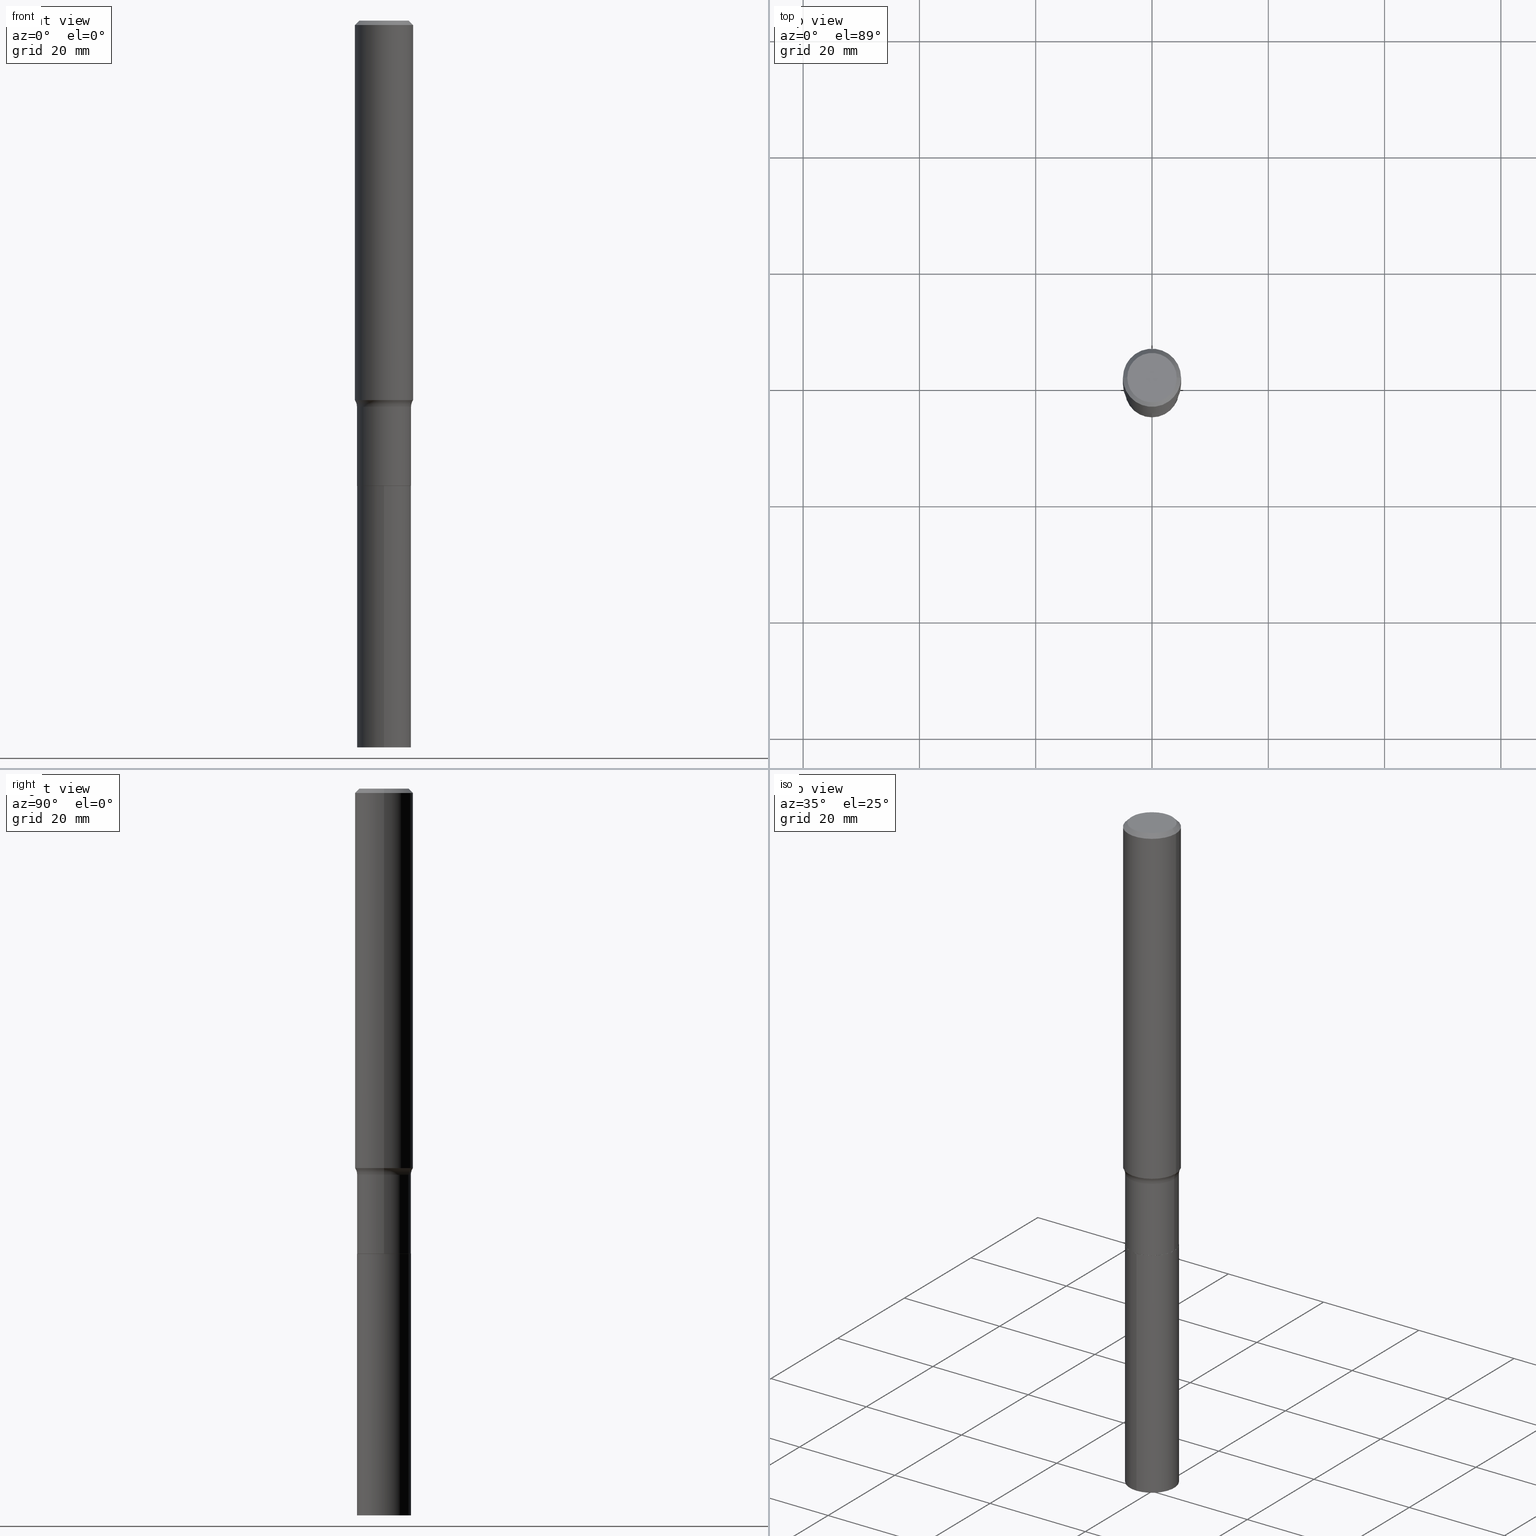
[diagram: canonical four-view strip — front | top / right | iso, engineering-drawing reading convention]
A machine part, canonical four-view strip (front | top / right | iso — engineering-drawing reading convention). The complete STEP part file that produces these views, byte-faithful:
ISO-10303-21;
HEADER;
FILE_DESCRIPTION (( 'STEP AP203' ),
    '1' );
FILE_NAME ('67881.STEP',
    '2024-04-19T16:52:04',
    ( '' ),
    ( '' ),
    'SwSTEP 2.0',
    'SolidWorks 2023',
    '' );
FILE_SCHEMA (( 'CONFIG_CONTROL_DESIGN' ));
ENDSEC;

DATA;
#1 = ADVANCED_FACE ( 'NONE', ( #260 ), #305, .T. ) ;
#2 = PLANE ( 'NONE',  #374 ) ;
#3 = DIRECTION ( 'NONE',  ( 0.7071067811860163310, -2.468850131076692830E-15, 0.7071067811870787034 ) ) ;
#4 = CYLINDRICAL_SURFACE ( 'NONE', #295, 0.1830499999999999905 ) ;
#5 = CARTESIAN_POINT ( 'NONE',  ( 1.203488073211193522E-28, -1.718263413532219501E-14, -4.921300000000000452 ) ) ;
#6 = VERTEX_POINT ( 'NONE', #49 ) ;
#7 = CARTESIAN_POINT ( 'NONE',  ( -8.479870072011572279E-29, -4.656092491393031169E-14, -4.921300000000000452 ) ) ;
#8 = ADVANCED_FACE ( 'NONE', ( #367 ), #4, .T. ) ;
#9 = CIRCLE ( 'NONE', #21, 0.1968500000000000250 ) ;
#10 = AXIS2_PLACEMENT_3D ( 'NONE', #110, #265, #227 ) ;
#11 = DIRECTION ( 'NONE',  ( -2.445468806185136877E-29, 3.491481338843145188E-15, 1.000000000000000000 ) ) ;
#12 = PRODUCT_DEFINITION_FORMATION_WITH_SPECIFIED_SOURCE ( 'ANY', '', #280, .NOT_KNOWN. ) ;
#13 = CARTESIAN_POINT ( 'NONE',  ( 7.700292176915756435E-29, -1.099397643974929475E-14, -3.148799999999999599 ) ) ;
#14 = DIRECTION ( 'NONE',  ( -2.445468806185136597E-29, 3.491481338843145583E-15, 1.000000000000000000 ) ) ;
#15 = ORIENTED_EDGE ( 'NONE', *, *, #197, .F. ) ;
#16 = CYLINDRICAL_SURFACE ( 'NONE', #139, 0.1968500000000001915 ) ;
#17 = ORIENTED_EDGE ( 'NONE', *, *, #61, .F. ) ;
#18 = EDGE_CURVE ( 'NONE', #126, #461, #317, .T. ) ;
#19 = CIRCLE ( 'NONE', #55, 0.1968500000000003580 ) ;
#20 = CC_DESIGN_APPROVAL ( #343, ( #348 ) ) ;
#21 = AXIS2_PLACEMENT_3D ( 'NONE', #448, #376, #103 ) ;
#22 = VECTOR ( 'NONE', #406, 39.37007874015748143 ) ;
#23 = PERSON_AND_ORGANIZATION_ROLE ( 'classification_officer' ) ;
#24 = DIRECTION ( 'NONE',  ( -6.982962677686264344E-15, -1.000000000000000000, 2.984810700534567995E-15 ) ) ;
#25 = APPROVAL_ROLE ( '' ) ;
#26 = CONICAL_SURFACE ( 'NONE', #121, 0.1825499999999999623, 0.7853981633966971021 ) ;
#27 = ORIENTED_EDGE ( 'NONE', *, *, #289, .F. ) ;
#28 = CARTESIAN_POINT ( 'NONE',  ( 0.000000000000000000, 0.000000000000000000, 0.000000000000000000 ) ) ;
#29 = DATE_AND_TIME ( #459, #151 ) ;
#30 = EDGE_CURVE ( 'NONE', #137, #199, #444, .T. ) ;
#31 = LENGTH_MEASURE_WITH_UNIT ( LENGTH_MEASURE( 0.02539999999999999897 ), #333 );
#32 = EDGE_LOOP ( 'NONE', ( #458, #77, #323, #221 ) ) ;
#33 = DIRECTION ( 'NONE',  ( -2.445468806185136597E-29, 3.491481338843145583E-15, 1.000000000000000000 ) ) ;
#34 = CARTESIAN_POINT ( 'NONE',  ( 0.1825499999999999623, -1.227046201723034707E-14, -3.149300000000000210 ) ) ;
#35 = EDGE_CURVE ( 'NONE', #461, #199, #179, .T. ) ;
#36 = DIRECTION ( 'NONE',  ( 1.000000000000000000, -6.982962677686263555E-15, 0.000000000000000000 ) ) ;
#37 = ORIENTED_EDGE ( 'NONE', *, *, #316, .T. ) ;
#38 = PLANE ( 'NONE',  #229 ) ;
#39 = FACE_OUTER_BOUND ( 'NONE', #326, .T. ) ;
#40 = DIRECTION ( 'NONE',  ( -0.7071067811865456854, 2.468850131082237733E-15, -0.7071067811865493491 ) ) ;
#41 = VERTEX_POINT ( 'NONE', #143 ) ;
#42 = FACE_OUTER_BOUND ( 'NONE', #344, .T. ) ;
#43 = CARTESIAN_POINT ( 'NONE',  ( 0.1673224999999999851, -1.300749711163072397E-15, 4.096137381456741925E-18 ) ) ;
#44 = AXIS2_PLACEMENT_3D ( 'NONE', #427, #170, #243 ) ;
#45 = DIRECTION ( 'NONE',  ( -2.445468806185136597E-29, 3.491481338843145583E-15, 1.000000000000000000 ) ) ;
#46 = CARTESIAN_POINT ( 'NONE',  ( 0.2630499999999998950, -1.096499714463688911E-14, -2.614399999999999391 ) ) ;
#47 = CARTESIAN_POINT ( 'NONE',  ( 1.300648477808961733E-15, 0.1830499999999828098, -4.921300000000002228 ) ) ;
#48 = ORIENTED_EDGE ( 'NONE', *, *, #313, .T. ) ;
#49 = CARTESIAN_POINT ( 'NONE',  ( -1.278231318150350366E-15, -0.1830500000000171434, -4.921299999999999564 ) ) ;
#50 = DIRECTION ( 'NONE',  ( 1.000000000000000000, -6.982962677686262766E-15, 0.000000000000000000 ) ) ;
#51 = AXIS2_PLACEMENT_3D ( 'NONE', #83, #457, #464 ) ;
#52 = DATE_AND_TIME ( #419, #252 ) ;
#53 = AXIS2_PLACEMENT_3D ( 'NONE', #138, #131, #400 ) ;
#54 = DIRECTION ( 'NONE',  ( 1.000000000000000000, -6.982962677686263555E-15, 0.000000000000000000 ) ) ;
#55 = AXIS2_PLACEMENT_3D ( 'NONE', #281, #163, #388 ) ;
#56 = AXIS2_PLACEMENT_3D ( 'NONE', #118, #226, #50 ) ;
#57 = DATE_TIME_ROLE ( 'creation_date' ) ;
#58 = DIRECTION ( 'NONE',  ( 0.000000000000000000, 0.000000000000000000, 1.000000000000000000 ) ) ;
#59 =( NAMED_UNIT ( * ) SI_UNIT ( $, .STERADIAN. ) SOLID_ANGLE_UNIT ( ) );
#60 = DIRECTION ( 'NONE',  ( -2.445466038822281372E-29, 3.491485301864262439E-15, 1.000000000000000000 ) ) ;
#61 = EDGE_CURVE ( 'NONE', #126, #130, #299, .T. ) ;
#62 = DIRECTION ( 'NONE',  ( -2.445468806185136597E-29, 3.491481338843145583E-15, 1.000000000000000000 ) ) ;
#63 = CC_DESIGN_APPROVAL ( #364, ( #215 ) ) ;
#64 = DIRECTION ( 'NONE',  ( 1.000000000000000000, -6.982962677686266711E-15, 4.876176775795935793E-29 ) ) ;
#65 = ORIENTED_EDGE ( 'NONE', *, *, #387, .F. ) ;
#66 = DIRECTION ( 'NONE',  ( -1.000000000000000000, 7.105427357601005014E-15, 0.000000000000000000 ) ) ;
#67 = CARTESIAN_POINT ( 'NONE',  ( 0.000000000000000000, 0.000000000000000000, 0.000000000000000000 ) ) ;
#68 = DIRECTION ( 'NONE',  ( 2.445466038822281372E-29, -3.491485301864262439E-15, -1.000000000000000000 ) ) ;
#69 = CARTESIAN_POINT ( 'NONE',  ( 0.000000000000000000, 0.000000000000000000, 0.000000000000000000 ) ) ;
#70 = ORIENTED_EDGE ( 'NONE', *, *, #169, .F. ) ;
#71 = ADVANCED_FACE ( 'NONE', ( #417 ), #158, .T. ) ;
#72 = DIRECTION ( 'NONE',  ( -2.445468806185136597E-29, 3.491481338843145583E-15, 1.000000000000000000 ) ) ;
#73 = CIRCLE ( 'NONE', #339, 0.1830499999999999905 ) ;
#74 = APPROVAL_PERSON_ORGANIZATION ( #238, #385, #25 ) ;
#75 = ORIENTED_EDGE ( 'NONE', *, *, #383, .F. ) ;
#76 = CARTESIAN_POINT ( 'NONE',  ( -0.1968500000000000250, -3.138494505646045746E-15, -0.02952750000000017166 ) ) ;
#77 = ORIENTED_EDGE ( 'NONE', *, *, #149, .T. ) ;
#78 = EDGE_CURVE ( 'NONE', #246, #263, #168, .T. ) ;
#79 = PERSON_AND_ORGANIZATION_ROLE ( 'design_supplier' ) ;
#80 = CIRCLE ( 'NONE', #180, 0.1673224999999999851 ) ;
#81 = EDGE_CURVE ( 'NONE', #128, #137, #80, .T. ) ;
#82 = CIRCLE ( 'NONE', #286, 0.08000000000000007105 ) ;
#83 = CARTESIAN_POINT ( 'NONE',  ( 7.701514911318850358E-29, -1.099572218041871704E-14, -3.149299999999999766 ) ) ;
#84 = ADVANCED_FACE ( 'NONE', ( #186 ), #342, .T. ) ;
#85 = COORDINATED_UNIVERSAL_TIME_OFFSET ( 5, 0, .BEHIND. ) ;
#86 = VECTOR ( 'NONE', #301, 39.37007874015748143 ) ;
#87 = ORIENTED_EDGE ( 'NONE', *, *, #197, .T. ) ;
#88 = VERTEX_POINT ( 'NONE', #291 ) ;
#89 = DIRECTION ( 'NONE',  ( 1.000000000000000000, -6.982962677686264344E-15, 0.000000000000000000 ) ) ;
#90 = PERSON_AND_ORGANIZATION_ROLE ( 'design_owner' ) ;
#91 = TOROIDAL_SURFACE ( 'NONE', #421, 0.2630499999999998950, 0.08000000000000007105 ) ;
#92 = DIRECTION ( 'NONE',  ( 1.000000000000000000, -6.982962677686267499E-15, 4.876294436782262290E-29 ) ) ;
#93 = DIRECTION ( 'NONE',  ( 1.000000000000000000, -6.982962677686266711E-15, 4.876176775795935232E-29 ) ) ;
#94 = CARTESIAN_POINT ( 'NONE',  ( -0.2630499999999998950, -7.259046145854573999E-15, -2.614399999999999391 ) ) ;
#95 = CARTESIAN_POINT ( 'NONE',  ( 0.000000000000000000, 0.000000000000000000, 0.000000000000000000 ) ) ;
#96 = DIRECTION ( 'NONE',  ( 1.000000000000000000, -6.982962677686266711E-15, 4.876176775795935793E-29 ) ) ;
#97 = CYLINDRICAL_SURFACE ( 'NONE', #100, 0.1830499999999999072 ) ;
#98 = VECTOR ( 'NONE', #3, 39.37007874015748143 ) ;
#99 = DIRECTION ( 'NONE',  ( -6.982962677686265922E-15, -1.000000000000000000, 3.491485301864262439E-15 ) ) ;
#100 = AXIS2_PLACEMENT_3D ( 'NONE', #28, #205, #93 ) ;
#101 = CARTESIAN_POINT ( 'NONE',  ( -0.1968500000000000250, 1.271501487869850120E-15, -0.02952750000000017166 ) ) ;
#102 = CARTESIAN_POINT ( 'NONE',  ( 7.220858017463204230E-31, -1.030947152326915870E-16, -0.02952750000000017166 ) ) ;
#103 = DIRECTION ( 'NONE',  ( 1.000000000000000000, -6.982962677686265922E-15, 0.000000000000000000 ) ) ;
#104 = ORIENTED_EDGE ( 'NONE', *, *, #30, .F. ) ;
#105 = LINE ( 'NONE', #219, #296 ) ;
#106 = PLANE ( 'NONE',  #262 ) ;
#107 = ORIENTED_EDGE ( 'NONE', *, *, #267, .T. ) ;
#108 = APPROVAL_PERSON_ORGANIZATION ( #191, #343, #414 ) ;
#109 = ORIENTED_EDGE ( 'NONE', *, *, #455, .F. ) ;
#110 = CARTESIAN_POINT ( 'NONE',  ( 7.220858017463204230E-31, -1.030947152326915870E-16, -0.02952750000000017166 ) ) ;
#111 = APPLICATION_CONTEXT ( 'configuration controlled 3d designs of mechanical parts and assemblies' ) ;
#112 = EDGE_CURVE ( 'NONE', #199, #130, #9, .T. ) ;
#113 = CARTESIAN_POINT ( 'NONE',  ( 6.393433646890419314E-29, -9.128128812271516003E-15, -2.614399999999999391 ) ) ;
#114 = CARTESIAN_POINT ( 'NONE',  ( 7.701514911318851479E-29, -1.099572218041872020E-14, -3.149300000000000210 ) ) ;
#115 = AXIS2_PLACEMENT_3D ( 'NONE', #102, #256, #404 ) ;
#116 = CC_DESIGN_APPROVAL ( #385, ( #12 ) ) ;
#117 = PERSON_AND_ORGANIZATION ( #152, #356 ) ;
#118 = CARTESIAN_POINT ( 'NONE',  ( 7.700292176915756435E-29, -1.099397643974929475E-14, -3.148799999999999599 ) ) ;
#119 = CALENDAR_DATE ( 2024, 19, 4 ) ;
#120 = AXIS2_PLACEMENT_3D ( 'NONE', #67, #45, #96 ) ;
#121 = AXIS2_PLACEMENT_3D ( 'NONE', #178, #72, #290 ) ;
#122 = VERTEX_POINT ( 'NONE', #47 ) ;
#123 = CARTESIAN_POINT ( 'NONE',  ( 7.701514911318851479E-29, -1.099572218041872020E-14, -3.149300000000000210 ) ) ;
#124 = DIRECTION ( 'NONE',  ( 1.000000000000000000, 0.000000000000000000, 0.000000000000000000 ) ) ;
#125 = CC_DESIGN_PERSON_AND_ORGANIZATION_ASSIGNMENT ( #285, #425, ( #215 ) ) ;
#126 = VERTEX_POINT ( 'NONE', #438 ) ;
#127 =( NAMED_UNIT ( * ) PLANE_ANGLE_UNIT ( ) SI_UNIT ( $, .RADIAN. ) );
#128 = VERTEX_POINT ( 'NONE', #43 ) ;
#129 = CIRCLE ( 'NONE', #44, 0.1830499999999999905 ) ;
#130 = VERTEX_POINT ( 'NONE', #304 ) ;
#131 = DIRECTION ( 'NONE',  ( 2.438088387897960049E-29, -3.491481338843145188E-15, -1.000000000000000000 ) ) ;
#132 = DIRECTION ( 'NONE',  ( -2.445468806185136597E-29, 3.491481338843145583E-15, 1.000000000000000000 ) ) ;
#133 = ADVANCED_FACE ( 'NONE', ( #142 ), #16, .T. ) ;
#134 = DIRECTION ( 'NONE',  ( 7.105427357601001859E-15, 1.000000000000000000, -3.491481338843145583E-15 ) ) ;
#135 = DIRECTION ( 'NONE',  ( 1.000000000000000000, -6.982962677686267499E-15, 4.876294436782262290E-29 ) ) ;
#136 = DIRECTION ( 'NONE',  ( -2.445466038822281652E-29, 3.491485301864262044E-15, 1.000000000000000000 ) ) ;
#137 = VERTEX_POINT ( 'NONE', #145 ) ;
#138 = CARTESIAN_POINT ( 'NONE',  ( -5.008488096090108951E-47, 7.150793614331948590E-33, 2.048068690724054183E-18 ) ) ;
#139 = AXIS2_PLACEMENT_3D ( 'NONE', #95, #396, #64 ) ;
#140 = ADVANCED_FACE ( 'NONE', ( #209 ), #307, .T. ) ;
#141 = LOCAL_TIME ( 12, 52, 4.000000000000000000, #157 ) ;
#142 = FACE_OUTER_BOUND ( 'NONE', #276, .T. ) ;
#143 = CARTESIAN_POINT ( 'NONE',  ( -0.1830499999999999350, -8.760404148201544025E-15, -3.148799999999999599 ) ) ;
#144 = DIRECTION ( 'NONE',  ( -2.445468806185136597E-29, 3.491481338843145583E-15, 1.000000000000000000 ) ) ;
#145 = CARTESIAN_POINT ( 'NONE',  ( -0.1673224999999999851, 1.219954130253505263E-15, 4.096137381439757534E-18 ) ) ;
#146 = CC_DESIGN_DATE_AND_TIME_ASSIGNMENT ( #351, #416, ( #348 ) ) ;
#147 = VERTEX_POINT ( 'NONE', #334 ) ;
#148 = EDGE_LOOP ( 'NONE', ( #48, #447, #109, #377 ) ) ;
#149 = EDGE_CURVE ( 'NONE', #325, #41, #401, .T. ) ;
#150 = CIRCLE ( 'NONE', #207, 0.1830499999999999905 ) ;
#151 = LOCAL_TIME ( 12, 52, 4.000000000000000000, #359 ) ;
#152 = PERSON ( 'UNSPECIFIED', 'UNSPECIFIED', 'UNSPECIFIED', ('UNSPECIFIED'), ('UNSPECIFIED'), ('UNSPECIFIED') ) ;
#153 = DIRECTION ( 'NONE',  ( 1.000000000000000000, -6.982962677686264344E-15, 0.000000000000000000 ) ) ;
#154 = ADVANCED_FACE ( 'NONE', ( #39 ), #106, .F. ) ;
#155 = LOCAL_TIME ( 12, 52, 4.000000000000000000, #85 ) ;
#156 = CARTESIAN_POINT ( 'NONE',  ( 6.393433646890419314E-29, -9.128128812271516003E-15, -2.614399999999999391 ) ) ;
#157 = COORDINATED_UNIVERSAL_TIME_OFFSET ( 5, 0, .BEHIND. ) ;
#158 = CYLINDRICAL_SURFACE ( 'NONE', #51, 0.1830499999999999905 ) ;
#159 = APPROVAL_ROLE ( '' ) ;
#160 = ORIENTED_EDGE ( 'NONE', *, *, #35, .F. ) ;
#161 = DATE_AND_TIME ( #237, #155 ) ;
#162 = EDGE_CURVE ( 'NONE', #325, #246, #236, .T. ) ;
#163 = DIRECTION ( 'NONE',  ( -2.445468806185136597E-29, 3.491481338843145583E-15, 1.000000000000000000 ) ) ;
#164 = AXIS2_PLACEMENT_3D ( 'NONE', #113, #282, #36 ) ;
#165 = ORIENTED_EDGE ( 'NONE', *, *, #324, .F. ) ;
#166 = CARTESIAN_POINT ( 'NONE',  ( -0.1968500000000003858, -7.572597671403159960E-15, -2.569482742737338121 ) ) ;
#167 = ORIENTED_EDGE ( 'NONE', *, *, #324, .T. ) ;
#168 = LINE ( 'NONE', #372, #98 ) ;
#169 = EDGE_CURVE ( 'NONE', #122, #6, #443, .T. ) ;
#170 = DIRECTION ( 'NONE',  ( -2.445466038822281652E-29, 3.491485301864262044E-15, 1.000000000000000000 ) ) ;
#171 = AXIS2_PLACEMENT_3D ( 'NONE', #375, #340, #258 ) ;
#172 = CARTESIAN_POINT ( 'NONE',  ( 1.300648477808983624E-15, 0.1830499999999889715, -3.149300000000000210 ) ) ;
#173 = CARTESIAN_POINT ( 'NONE',  ( 7.701514911318850358E-29, -1.099572218041871704E-14, -3.149299999999999766 ) ) ;
#174 = FACE_OUTER_BOUND ( 'NONE', #332, .T. ) ;
#175 = DIRECTION ( 'NONE',  ( -2.445468806185136597E-29, 3.491481338843145583E-15, 1.000000000000000000 ) ) ;
#176 = DIRECTION ( 'NONE',  ( -2.445468806185136597E-29, 3.491481338843145583E-15, 1.000000000000000000 ) ) ;
#177 = EDGE_LOOP ( 'NONE', ( #27, #257, #354, #431 ) ) ;
#178 = CARTESIAN_POINT ( 'NONE',  ( 7.701514911318851479E-29, -1.099572218041872020E-14, -3.149300000000000210 ) ) ;
#179 = LINE ( 'NONE', #337, #250 ) ;
#180 = AXIS2_PLACEMENT_3D ( 'NONE', #331, #175, #135 ) ;
#181 = AXIS2_PLACEMENT_3D ( 'NONE', #114, #193, #153 ) ;
#182 = CARTESIAN_POINT ( 'NONE',  ( 0.1830499999999999072, -1.278231318150470470E-15, 8.925841588094455250E-30 ) ) ;
#183 = ORIENTED_EDGE ( 'NONE', *, *, #61, .T. ) ;
#184 = ORIENTED_EDGE ( 'NONE', *, *, #149, .F. ) ;
#185 = FACE_OUTER_BOUND ( 'NONE', #357, .T. ) ;
#186 = FACE_OUTER_BOUND ( 'NONE', #148, .T. ) ;
#187 = ORIENTED_EDGE ( 'NONE', *, *, #320, .F. ) ;
#188 = ADVANCED_FACE ( 'NONE', ( #410 ), #91, .F. ) ;
#189 = VECTOR ( 'NONE', #40, 39.37007874015748143 ) ;
#190 = CIRCLE ( 'NONE', #164, 0.1830499999999999072 ) ;
#191 = PERSON_AND_ORGANIZATION ( #152, #356 ) ;
#192 = DIRECTION ( 'NONE',  ( -2.438088387897960049E-29, 3.491481338843145188E-15, 1.000000000000000000 ) ) ;
#193 = DIRECTION ( 'NONE',  ( -2.445468806185136597E-29, 3.491481338843145583E-15, 1.000000000000000000 ) ) ;
#194 = AXIS2_PLACEMENT_3D ( 'NONE', #329, #132, #92 ) ;
#195 = PRODUCT_DEFINITION_SHAPE ( 'NONE', 'NONE',  #215 ) ;
#196 = DATE_AND_TIME ( #314, #271 ) ;
#197 = EDGE_CURVE ( 'NONE', #122, #255, #312, .T. ) ;
#198 = APPROVAL_STATUS ( 'not_yet_approved' ) ;
#199 = VERTEX_POINT ( 'NONE', #76 ) ;
#200 = DIRECTION ( 'NONE',  ( -6.982962677686264344E-15, -1.000000000000000000, 5.969621401069135991E-15 ) ) ;
#201 = PERSON_AND_ORGANIZATION ( #152, #356 ) ;
#202 = CONICAL_SURFACE ( 'NONE', #10, 0.1968500000000000250, 0.7853981633974457255 ) ;
#203 =( GEOMETRIC_REPRESENTATION_CONTEXT ( 3 ) GLOBAL_UNCERTAINTY_ASSIGNED_CONTEXT ( ( #361 ) ) GLOBAL_UNIT_ASSIGNED_CONTEXT ( ( #463, #127, #59 ) ) REPRESENTATION_CONTEXT ( 'NONE', 'WORKASPACE' ) );
#204 = APPLICATION_PROTOCOL_DEFINITION ( 'international standard', 'config_control_design', 1994, #111 ) ;
#205 = DIRECTION ( 'NONE',  ( -2.445468806185136597E-29, 3.491481338843145583E-15, 1.000000000000000000 ) ) ;
#206 = PRODUCT_RELATED_PRODUCT_CATEGORY ( 'detail', '', ( #280 ) ) ;
#207 = AXIS2_PLACEMENT_3D ( 'NONE', #173, #435, #24 ) ;
#208 = EDGE_LOOP ( 'NONE', ( #379, #391 ) ) ;
#209 = FACE_OUTER_BOUND ( 'NONE', #445, .T. ) ;
#210 = EDGE_LOOP ( 'NONE', ( #15, #420, #37, #362 ) ) ;
#211 = ADVANCED_FACE ( 'NONE', ( #378 ), #202, .T. ) ;
#212 = ORIENTED_EDGE ( 'NONE', *, *, #267, .F. ) ;
#213 = FACE_OUTER_BOUND ( 'NONE', #208, .T. ) ;
#214 = ORIENTED_EDGE ( 'NONE', *, *, #387, .T. ) ;
#215 = PRODUCT_DEFINITION ( 'UNKNOWN', '', #12, #345 ) ;
#216 = LINE ( 'NONE', #182, #22 ) ;
#217 = ORIENTED_EDGE ( 'NONE', *, *, #316, .F. ) ;
#218 = VECTOR ( 'NONE', #248, 39.37007874015748143 ) ;
#219 = CARTESIAN_POINT ( 'NONE',  ( -1.278231318150393753E-15, -0.1830500000000109817, -3.149299999999999322 ) ) ;
#220 = DIRECTION ( 'NONE',  ( 1.000000000000000000, -6.982962677686266711E-15, 4.876176775795935232E-29 ) ) ;
#221 = ORIENTED_EDGE ( 'NONE', *, *, #78, .F. ) ;
#222 = MANIFOLD_SOLID_BREP ( 'Body-Move/Copy2[1]', #261 ) ;
#223 = EDGE_CURVE ( 'NONE', #147, #88, #190, .T. ) ;
#224 = DIRECTION ( 'NONE',  ( 1.000000000000000000, -6.982962677686266711E-15, 4.883557194083112901E-29 ) ) ;
#225 = VERTEX_POINT ( 'NONE', #363 ) ;
#226 = DIRECTION ( 'NONE',  ( -2.445468806185136597E-29, 3.491481338843145583E-15, 1.000000000000000000 ) ) ;
#227 = DIRECTION ( 'NONE',  ( -1.000000000000000000, 6.982962677686265922E-15, 0.000000000000000000 ) ) ;
#228 = CC_DESIGN_PERSON_AND_ORGANIZATION_ASSIGNMENT ( #201, #90, ( #280 ) ) ;
#229 = AXIS2_PLACEMENT_3D ( 'NONE', #7, #60, #99 ) ;
#230 = PERSON_AND_ORGANIZATION ( #152, #356 ) ;
#231 = ADVANCED_FACE ( 'NONE', ( #185 ), #253, .F. ) ;
#232 = DIRECTION ( 'NONE',  ( -2.445468806185136597E-29, 3.491481338843145583E-15, 1.000000000000000000 ) ) ;
#233 = APPROVAL_DATE_TIME ( #196, #385 ) ;
#234 = CC_DESIGN_PERSON_AND_ORGANIZATION_ASSIGNMENT ( #117, #23, ( #348 ) ) ;
#235 = MECHANICAL_CONTEXT ( 'NONE', #111, 'mechanical' ) ;
#236 = CIRCLE ( 'NONE', #181, 0.1825499999999999623 ) ;
#237 = CALENDAR_DATE ( 2024, 19, 4 ) ;
#238 = PERSON_AND_ORGANIZATION ( #152, #356 ) ;
#239 = ORIENTED_EDGE ( 'NONE', *, *, #264, .F. ) ;
#240 = ORIENTED_EDGE ( 'NONE', *, *, #162, .T. ) ;
#241 = CARTESIAN_POINT ( 'NONE',  ( 6.393433646890419314E-29, -9.128128812271516003E-15, -2.614399999999999391 ) ) ;
#242 = AXIS2_PLACEMENT_3D ( 'NONE', #412, #350, #269 ) ;
#243 = DIRECTION ( 'NONE',  ( -6.982962677686264344E-15, -1.000000000000000000, 2.984810700534567995E-15 ) ) ;
#244 = ADVANCED_FACE ( 'NONE', ( #174 ), #38, .F. ) ;
#245 = ORIENTED_EDGE ( 'NONE', *, *, #78, .T. ) ;
#246 = VERTEX_POINT ( 'NONE', #34 ) ;
#247 = APPLICATION_CONTEXT ( 'configuration controlled 3d designs of mechanical parts and assemblies' ) ;
#248 = DIRECTION ( 'NONE',  ( 0.7071067811865456854, -7.319954787623249734E-15, -0.7071067811865493491 ) ) ;
#249 = EDGE_LOOP ( 'NONE', ( #462, #87, #426, #217 ) ) ;
#250 = VECTOR ( 'NONE', #11, 39.37007874015748143 ) ;
#251 = AXIS2_PLACEMENT_3D ( 'NONE', #241, #366, #54 ) ;
#252 = LOCAL_TIME ( 12, 52, 4.000000000000000000, #309 ) ;
#253 = PLANE ( 'NONE',  #53 ) ;
#254 = ADVANCED_FACE ( 'NONE', ( #42 ), #26, .T. ) ;
#255 = VERTEX_POINT ( 'NONE', #172 ) ;
#256 = DIRECTION ( 'NONE',  ( -2.445468806185136597E-29, 3.491481338843145583E-15, 1.000000000000000000 ) ) ;
#257 = ORIENTED_EDGE ( 'NONE', *, *, #403, .F. ) ;
#258 = DIRECTION ( 'NONE',  ( 1.000000000000000000, -6.982962677686264344E-15, 0.000000000000000000 ) ) ;
#259 = DIRECTION ( 'NONE',  ( 2.445468806185136597E-29, -3.491481338843145583E-15, -1.000000000000000000 ) ) ;
#260 = FACE_OUTER_BOUND ( 'NONE', #373, .T. ) ;
#261 = CLOSED_SHELL ( 'NONE', ( #8, #244, #71, #275 ) ) ;
#262 = AXIS2_PLACEMENT_3D ( 'NONE', #407, #192, #450 ) ;
#263 = VERTEX_POINT ( 'NONE', #297 ) ;
#264 = EDGE_CURVE ( 'NONE', #41, #147, #371, .T. ) ;
#265 = DIRECTION ( 'NONE',  ( 2.445468806185136597E-29, -3.491481338843145583E-15, -1.000000000000000000 ) ) ;
#266 = PERSON_AND_ORGANIZATION_ROLE ( 'creator' ) ;
#267 = EDGE_CURVE ( 'NONE', #461, #147, #318, .T. ) ;
#268 = AXIS2_PLACEMENT_3D ( 'NONE', #69, #14, #220 ) ;
#269 = DIRECTION ( 'NONE',  ( -6.982962677686264344E-15, -1.000000000000000000, 5.969621401069135991E-15 ) ) ;
#270 = CIRCLE ( 'NONE', #115, 0.1968500000000000250 ) ;
#271 = LOCAL_TIME ( 12, 52, 4.000000000000000000, #395 ) ;
#272 = CC_DESIGN_PERSON_AND_ORGANIZATION_ASSIGNMENT ( #230, #266, ( #12 ) ) ;
#273 = APPROVAL_DATE_TIME ( #52, #343 ) ;
#274 = CARTESIAN_POINT ( 'NONE',  ( 0.1968500000000001915, -1.374596203102542989E-15, 9.598753983154309266E-30 ) ) ;
#275 = ADVANCED_FACE ( 'NONE', ( #213 ), #2, .F. ) ;
#276 = EDGE_LOOP ( 'NONE', ( #160, #214, #183, #284 ) ) ;
#277 = TOROIDAL_SURFACE ( 'NONE', #355, 0.2630499999999998950, 0.08000000000000007105 ) ;
#278 = PERSON_AND_ORGANIZATION ( #152, #356 ) ;
#279 = ORIENTED_EDGE ( 'NONE', *, *, #18, .T. ) ;
#280 = PRODUCT ( '67881', '67881', '', ( #235 ) ) ;
#281 = CARTESIAN_POINT ( 'NONE',  ( 6.283589895395188928E-29, -8.971301046746920115E-15, -2.569482742737338121 ) ) ;
#282 = DIRECTION ( 'NONE',  ( -2.445468806185136597E-29, 3.491481338843145583E-15, 1.000000000000000000 ) ) ;
#283 = ADVANCED_FACE ( 'NONE', ( #437 ), #430, .T. ) ;
#284 = ORIENTED_EDGE ( 'NONE', *, *, #112, .F. ) ;
#285 = PERSON_AND_ORGANIZATION ( #152, #356 ) ;
#286 = AXIS2_PLACEMENT_3D ( 'NONE', #46, #434, #303 ) ;
#287 = DIRECTION ( 'NONE',  ( -2.445466038822281652E-29, 3.491485301864262439E-15, 1.000000000000000000 ) ) ;
#288 = FACE_OUTER_BOUND ( 'NONE', #408, .T. ) ;
#289 = EDGE_CURVE ( 'NONE', #128, #130, #440, .T. ) ;
#290 = DIRECTION ( 'NONE',  ( 1.000000000000000000, -6.982962677686264344E-15, 0.000000000000000000 ) ) ;
#291 = CARTESIAN_POINT ( 'NONE',  ( 0.1830499999999999072, -1.040636013042198588E-14, -2.614399999999999391 ) ) ;
#292 = DIRECTION ( 'NONE',  ( -6.982962677686264344E-15, -1.000000000000000000, 2.984810700534567995E-15 ) ) ;
#293 = CARTESIAN_POINT ( 'NONE',  ( 7.701514911318850358E-29, -1.099572218041871704E-14, -3.149299999999999766 ) ) ;
#294 = DIRECTION ( 'NONE',  ( 1.000000000000000000, -6.982962677686265922E-15, 0.000000000000000000 ) ) ;
#295 = AXIS2_PLACEMENT_3D ( 'NONE', #369, #136, #292 ) ;
#296 = VECTOR ( 'NONE', #287, 39.37007874015748143 ) ;
#297 = CARTESIAN_POINT ( 'NONE',  ( 0.1830499999999999350, -1.227220775789976463E-14, -3.148799999999999599 ) ) ;
#298 = DIRECTION ( 'NONE',  ( -1.000000000000000000, 6.982962677686265922E-15, 0.000000000000000000 ) ) ;
#299 = LINE ( 'NONE', #274, #429 ) ;
#300 = DIRECTION ( 'NONE',  ( 1.000000000000000000, -6.982962677686262766E-15, 0.000000000000000000 ) ) ;
#301 = DIRECTION ( 'NONE',  ( -0.7071067811860163310, 7.493145998868434073E-15, 0.7071067811870787034 ) ) ;
#302 = ORIENTED_EDGE ( 'NONE', *, *, #35, .T. ) ;
#303 = DIRECTION ( 'NONE',  ( 1.000000000000000000, -6.982962677686277755E-15, 0.000000000000000000 ) ) ;
#304 = CARTESIAN_POINT ( 'NONE',  ( 0.1968500000000000250, -1.477690918335233294E-15, -0.02952750000000017166 ) ) ;
#305 = CYLINDRICAL_SURFACE ( 'NONE', #120, 0.1968500000000001915 ) ;
#306 = CC_DESIGN_PERSON_AND_ORGANIZATION_ASSIGNMENT ( #352, #79, ( #12 ) ) ;
#307 = CONICAL_SURFACE ( 'NONE', #409, 0.1968500000000000250, 0.7853981633974457255 ) ;
#308 = EDGE_CURVE ( 'NONE', #130, #199, #270, .T. ) ;
#309 = COORDINATED_UNIVERSAL_TIME_OFFSET ( 5, 0, .BEHIND. ) ;
#310 = EDGE_CURVE ( 'NONE', #263, #88, #216, .T. ) ;
#311 = AXIS2_PLACEMENT_3D ( 'NONE', #94, #134, #66 ) ;
#312 = LINE ( 'NONE', #451, #398 ) ;
#313 = EDGE_CURVE ( 'NONE', #263, #41, #327, .T. ) ;
#314 = CALENDAR_DATE ( 2024, 19, 4 ) ;
#315 = APPROVAL_DATE_TIME ( #161, #364 ) ;
#316 = EDGE_CURVE ( 'NONE', #6, #225, #105, .T. ) ;
#317 = CIRCLE ( 'NONE', #346, 0.1968500000000003580 ) ;
#318 = CIRCLE ( 'NONE', #311, 0.08000000000000007105 ) ;
#319 = ORIENTED_EDGE ( 'NONE', *, *, #308, .T. ) ;
#320 = EDGE_CURVE ( 'NONE', #126, #88, #82, .T. ) ;
#321 = ORIENTED_EDGE ( 'NONE', *, *, #289, .T. ) ;
#322 = CARTESIAN_POINT ( 'NONE',  ( -0.1825499999999999623, -9.695977189114545388E-15, -3.149300000000000210 ) ) ;
#323 = ORIENTED_EDGE ( 'NONE', *, *, #313, .F. ) ;
#324 = EDGE_CURVE ( 'NONE', #41, #263, #468, .T. ) ;
#325 = VERTEX_POINT ( 'NONE', #322 ) ;
#326 = EDGE_LOOP ( 'NONE', ( #75, #328 ) ) ;
#327 = CIRCLE ( 'NONE', #365, 0.1830499999999999350 ) ;
#328 = ORIENTED_EDGE ( 'NONE', *, *, #162, .F. ) ;
#329 = CARTESIAN_POINT ( 'NONE',  ( -1.001697619218021790E-46, 1.430158722866389718E-32, 4.096137381448108366E-18 ) ) ;
#330 = DIRECTION ( 'NONE',  ( -2.445468806185136877E-29, 3.491481338843145188E-15, 1.000000000000000000 ) ) ;
#331 = CARTESIAN_POINT ( 'NONE',  ( -1.001697619218021790E-46, 1.430158722866389718E-32, 4.096137381448108366E-18 ) ) ;
#332 = EDGE_LOOP ( 'NONE', ( #405, #70 ) ) ;
#333 =( LENGTH_UNIT ( ) NAMED_UNIT ( * ) SI_UNIT ( $, .METRE. ) );
#334 = CARTESIAN_POINT ( 'NONE',  ( -0.1830499999999999072, -8.760404148201544025E-15, -2.614399999999999391 ) ) ;
#335 = ORIENTED_EDGE ( 'NONE', *, *, #310, .T. ) ;
#336 = CARTESIAN_POINT ( 'NONE',  ( -0.1830499999999999072, 1.300648477808862731E-15, -9.004110682711601185E-30 ) ) ;
#337 = CARTESIAN_POINT ( 'NONE',  ( -0.1968500000000001915, 1.398703375343758577E-15, -9.682923725166790684E-30 ) ) ;
#338 = VECTOR ( 'NONE', #330, 39.37007874015748143 ) ;
#339 = AXIS2_PLACEMENT_3D ( 'NONE', #5, #432, #200 ) ;
#340 = DIRECTION ( 'NONE',  ( -2.445468806185136597E-29, 3.491481338843145583E-15, 1.000000000000000000 ) ) ;
#341 = ORIENTED_EDGE ( 'NONE', *, *, #223, .T. ) ;
#342 = CYLINDRICAL_SURFACE ( 'NONE', #268, 0.1830499999999999072 ) ;
#343 = APPROVAL ( #423, 'UNSPECIFIED' ) ;
#344 = EDGE_LOOP ( 'NONE', ( #184, #240, #245, #165 ) ) ;
#345 = DESIGN_CONTEXT ( 'detailed design', #247, 'design' ) ;
#346 = AXIS2_PLACEMENT_3D ( 'NONE', #439, #176, #294 ) ;
#347 = CIRCLE ( 'NONE', #251, 0.1830499999999999072 ) ;
#348 = SECURITY_CLASSIFICATION ( '', '', #456 ) ;
#349 = EDGE_CURVE ( 'NONE', #225, #255, #150, .T. ) ;
#350 = DIRECTION ( 'NONE',  ( -2.445466038822281652E-29, 3.491485301864262044E-15, 1.000000000000000000 ) ) ;
#351 = DATE_AND_TIME ( #119, #141 ) ;
#352 = PERSON_AND_ORGANIZATION ( #152, #356 ) ;
#353 = EDGE_CURVE ( 'NONE', #6, #122, #73, .T. ) ;
#354 = ORIENTED_EDGE ( 'NONE', *, *, #30, .T. ) ;
#355 = AXIS2_PLACEMENT_3D ( 'NONE', #394, #62, #358 ) ;
#356 = ORGANIZATION ( 'UNSPECIFIED', 'UNSPECIFIED', '' ) ;
#357 = EDGE_LOOP ( 'NONE', ( #370, #389 ) ) ;
#358 = DIRECTION ( 'NONE',  ( 1.000000000000000000, -6.982962677686266711E-15, 4.883557194083112901E-29 ) ) ;
#359 = COORDINATED_UNIVERSAL_TIME_OFFSET ( 5, 0, .BEHIND. ) ;
#360 = CC_DESIGN_DATE_AND_TIME_ASSIGNMENT ( #29, #57, ( #215 ) ) ;
#361 = UNCERTAINTY_MEASURE_WITH_UNIT (LENGTH_MEASURE( 1.000000000000000082E-05 ), #463, 'distance_accuracy_value', 'NONE');
#362 = ORIENTED_EDGE ( 'NONE', *, *, #393, .F. ) ;
#363 = CARTESIAN_POINT ( 'NONE',  ( -1.278231318150393753E-15, -0.1830500000000109817, -3.149299999999999322 ) ) ;
#364 = APPROVAL ( #390, 'UNSPECIFIED' ) ;
#365 = AXIS2_PLACEMENT_3D ( 'NONE', #13, #144, #300 ) ;
#366 = DIRECTION ( 'NONE',  ( -2.445468806185136597E-29, 3.491481338843145583E-15, 1.000000000000000000 ) ) ;
#367 = FACE_OUTER_BOUND ( 'NONE', #249, .T. ) ;
#368 = CARTESIAN_POINT ( 'NONE',  ( -0.1825499999999999623, -9.698626416288657377E-15, -3.149300000000000210 ) ) ;
#369 = CARTESIAN_POINT ( 'NONE',  ( 7.701514911318850358E-29, -1.099572218041871704E-14, -3.149299999999999766 ) ) ;
#370 = ORIENTED_EDGE ( 'NONE', *, *, #403, .T. ) ;
#371 = LINE ( 'NONE', #336, #338 ) ;
#372 = CARTESIAN_POINT ( 'NONE',  ( 0.1825499999999999623, -1.227046201723034707E-14, -3.149300000000000210 ) ) ;
#373 = EDGE_LOOP ( 'NONE', ( #279, #302, #428, #17 ) ) ;
#374 = AXIS2_PLACEMENT_3D ( 'NONE', #293, #68, #446 ) ;
#375 = CARTESIAN_POINT ( 'NONE',  ( 7.701514911318851479E-29, -1.099572218041872020E-14, -3.149300000000000210 ) ) ;
#376 = DIRECTION ( 'NONE',  ( -2.445468806185136597E-29, 3.491481338843145583E-15, 1.000000000000000000 ) ) ;
#377 = ORIENTED_EDGE ( 'NONE', *, *, #310, .F. ) ;
#378 = FACE_OUTER_BOUND ( 'NONE', #177, .T. ) ;
#379 = ORIENTED_EDGE ( 'NONE', *, *, #349, .T. ) ;
#380 = CIRCLE ( 'NONE', #460, 0.1825499999999999623 ) ;
#381 = APPROVAL_PERSON_ORGANIZATION ( #278, #364, #159 ) ;
#382 = CARTESIAN_POINT ( 'NONE',  ( 0.000000000000000000, 0.000000000000000000, 0.000000000000000000 ) ) ;
#383 = EDGE_CURVE ( 'NONE', #246, #325, #380, .T. ) ;
#384 = CIRCLE ( 'NONE', #194, 0.1673224999999999851 ) ;
#385 = APPROVAL ( #198, 'UNSPECIFIED' ) ;
#386 = MANIFOLD_SOLID_BREP ( 'Body-Move/Copy2[2]', #397 ) ;
#387 = EDGE_CURVE ( 'NONE', #461, #126, #19, .T. ) ;
#388 = DIRECTION ( 'NONE',  ( 1.000000000000000000, -6.982962677686265922E-15, 0.000000000000000000 ) ) ;
#389 = ORIENTED_EDGE ( 'NONE', *, *, #81, .T. ) ;
#390 = APPROVAL_STATUS ( 'not_yet_approved' ) ;
#391 = ORIENTED_EDGE ( 'NONE', *, *, #393, .T. ) ;
#392 = EDGE_LOOP ( 'NONE', ( #212, #411, #466, #402 ) ) ;
#393 = EDGE_CURVE ( 'NONE', #255, #225, #129, .T. ) ;
#394 = CARTESIAN_POINT ( 'NONE',  ( 6.393433646890419314E-29, -9.128128812271516003E-15, -2.614399999999999391 ) ) ;
#395 = COORDINATED_UNIVERSAL_TIME_OFFSET ( 5, 0, .BEHIND. ) ;
#396 = DIRECTION ( 'NONE',  ( -2.445468806185136597E-29, 3.491481338843145583E-15, 1.000000000000000000 ) ) ;
#397 = CLOSED_SHELL ( 'NONE', ( #283, #140, #1, #188, #84, #436, #441, #133, #211, #231, #154, #254 ) ) ;
#398 = VECTOR ( 'NONE', #454, 39.37007874015748143 ) ;
#399 = EDGE_LOOP ( 'NONE', ( #65, #107, #341, #187 ) ) ;
#400 = DIRECTION ( 'NONE',  ( -1.000000000000000000, 6.982962677686265922E-15, -4.876176775795935793E-29 ) ) ;
#401 = LINE ( 'NONE', #368, #86 ) ;
#402 = ORIENTED_EDGE ( 'NONE', *, *, #455, .T. ) ;
#403 = EDGE_CURVE ( 'NONE', #137, #128, #384, .T. ) ;
#404 = DIRECTION ( 'NONE',  ( 1.000000000000000000, -6.982962677686265922E-15, 0.000000000000000000 ) ) ;
#405 = ORIENTED_EDGE ( 'NONE', *, *, #353, .F. ) ;
#406 = DIRECTION ( 'NONE',  ( -2.445468806185136877E-29, 3.491481338843145188E-15, 1.000000000000000000 ) ) ;
#407 = CARTESIAN_POINT ( 'NONE',  ( 1.119506348740619180E-29, -2.042153306669301599E-14, -3.149300000000000210 ) ) ;
#408 = EDGE_LOOP ( 'NONE', ( #239, #167, #335, #424 ) ) ;
#409 = AXIS2_PLACEMENT_3D ( 'NONE', #442, #259, #298 ) ;
#410 = FACE_OUTER_BOUND ( 'NONE', #399, .T. ) ;
#411 = ORIENTED_EDGE ( 'NONE', *, *, #18, .F. ) ;
#412 = CARTESIAN_POINT ( 'NONE',  ( 1.203488073211193522E-28, -1.718263413532219501E-14, -4.921300000000000452 ) ) ;
#413 = AXIS2_PLACEMENT_3D ( 'NONE', #382, #58, #124 ) ;
#414 = APPROVAL_ROLE ( '' ) ;
#415 = DIMENSIONAL_EXPONENTS ( 1.000000000000000000, 0.000000000000000000, 0.000000000000000000, 0.000000000000000000, 0.000000000000000000, 0.000000000000000000, 0.000000000000000000 ) ;
#416 = DATE_TIME_ROLE ( 'classification_date' ) ;
#417 = FACE_OUTER_BOUND ( 'NONE', #210, .T. ) ;
#418 = APPLICATION_PROTOCOL_DEFINITION ( 'international standard', 'config_control_design', 1994, #247 ) ;
#419 = CALENDAR_DATE ( 2024, 19, 4 ) ;
#420 = ORIENTED_EDGE ( 'NONE', *, *, #169, .T. ) ;
#421 = AXIS2_PLACEMENT_3D ( 'NONE', #156, #232, #224 ) ;
#422 = CC_DESIGN_SECURITY_CLASSIFICATION ( #348, ( #12 ) ) ;
#423 = APPROVAL_STATUS ( 'not_yet_approved' ) ;
#424 = ORIENTED_EDGE ( 'NONE', *, *, #223, .F. ) ;
#425 = PERSON_AND_ORGANIZATION_ROLE ( 'creator' ) ;
#426 = ORIENTED_EDGE ( 'NONE', *, *, #349, .F. ) ;
#427 = CARTESIAN_POINT ( 'NONE',  ( 7.701514911318850358E-29, -1.099572218041871704E-14, -3.149299999999999766 ) ) ;
#428 = ORIENTED_EDGE ( 'NONE', *, *, #308, .F. ) ;
#429 = VECTOR ( 'NONE', #453, 39.37007874015748143 ) ;
#430 = CONICAL_SURFACE ( 'NONE', #171, 0.1825499999999999623, 0.7853981633966971021 ) ;
#431 = ORIENTED_EDGE ( 'NONE', *, *, #112, .T. ) ;
#432 = DIRECTION ( 'NONE',  ( -2.445466038822281652E-29, 3.491485301864262044E-15, 1.000000000000000000 ) ) ;
#433 = ADVANCED_BREP_SHAPE_REPRESENTATION ( '67881', ( #222, #386, #413 ), #203 ) ;
#434 = DIRECTION ( 'NONE',  ( -6.982962677686266711E-15, -1.000000000000000000, 3.491481338843145583E-15 ) ) ;
#435 = DIRECTION ( 'NONE',  ( -2.445466038822281652E-29, 3.491485301864262044E-15, 1.000000000000000000 ) ) ;
#436 = ADVANCED_FACE ( 'NONE', ( #288 ), #97, .T. ) ;
#437 = FACE_OUTER_BOUND ( 'NONE', #32, .T. ) ;
#438 = CARTESIAN_POINT ( 'NONE',  ( 0.1968500000000003858, -1.034589724984946488E-14, -2.569482742737338121 ) ) ;
#439 = CARTESIAN_POINT ( 'NONE',  ( 6.283589895395188928E-29, -8.971301046746920115E-15, -2.569482742737338121 ) ) ;
#440 = LINE ( 'NONE', #467, #218 ) ;
#441 = ADVANCED_FACE ( 'NONE', ( #465 ), #277, .F. ) ;
#442 = CARTESIAN_POINT ( 'NONE',  ( 7.220858017463204230E-31, -1.030947152326915870E-16, -0.02952750000000017166 ) ) ;
#443 = CIRCLE ( 'NONE', #242, 0.1830499999999999905 ) ;
#444 = LINE ( 'NONE', #101, #189 ) ;
#445 = EDGE_LOOP ( 'NONE', ( #449, #321, #319, #104 ) ) ;
#446 = DIRECTION ( 'NONE',  ( 6.982962677686265922E-15, 1.000000000000000000, -3.491485301864262439E-15 ) ) ;
#447 = ORIENTED_EDGE ( 'NONE', *, *, #264, .T. ) ;
#448 = CARTESIAN_POINT ( 'NONE',  ( 7.220858017463204230E-31, -1.030947152326915870E-16, -0.02952750000000017166 ) ) ;
#449 = ORIENTED_EDGE ( 'NONE', *, *, #81, .F. ) ;
#450 = DIRECTION ( 'NONE',  ( 1.000000000000000000, -6.982962677686265922E-15, 4.876176775795935793E-29 ) ) ;
#451 = CARTESIAN_POINT ( 'NONE',  ( 1.300648477808939842E-15, 0.1830499999999889715, -3.149300000000000210 ) ) ;
#452 = SHAPE_DEFINITION_REPRESENTATION ( #195, #433 ) ;
#453 = DIRECTION ( 'NONE',  ( -2.445468806185136877E-29, 3.491481338843145188E-15, 1.000000000000000000 ) ) ;
#454 = DIRECTION ( 'NONE',  ( -2.445466038822281652E-29, 3.491485301864262439E-15, 1.000000000000000000 ) ) ;
#455 = EDGE_CURVE ( 'NONE', #88, #147, #347, .T. ) ;
#456 = SECURITY_CLASSIFICATION_LEVEL ( 'unclassified' ) ;
#457 = DIRECTION ( 'NONE',  ( -2.445466038822281652E-29, 3.491485301864262044E-15, 1.000000000000000000 ) ) ;
#458 = ORIENTED_EDGE ( 'NONE', *, *, #383, .T. ) ;
#459 = CALENDAR_DATE ( 2024, 19, 4 ) ;
#460 = AXIS2_PLACEMENT_3D ( 'NONE', #123, #33, #89 ) ;
#461 = VERTEX_POINT ( 'NONE', #166 ) ;
#462 = ORIENTED_EDGE ( 'NONE', *, *, #353, .T. ) ;
#463 =( CONVERSION_BASED_UNIT ( 'INCH', #31 ) LENGTH_UNIT ( ) NAMED_UNIT ( #415 ) );
#464 = DIRECTION ( 'NONE',  ( -6.982962677686264344E-15, -1.000000000000000000, 2.984810700534567995E-15 ) ) ;
#465 = FACE_OUTER_BOUND ( 'NONE', #392, .T. ) ;
#466 = ORIENTED_EDGE ( 'NONE', *, *, #320, .T. ) ;
#467 = CARTESIAN_POINT ( 'NONE',  ( 0.1968500000000000250, -1.453583746094017706E-15, -0.02952750000000017166 ) ) ;
#468 = CIRCLE ( 'NONE', #56, 0.1830499999999999350 ) ;
ENDSEC;
END-ISO-10303-21;
